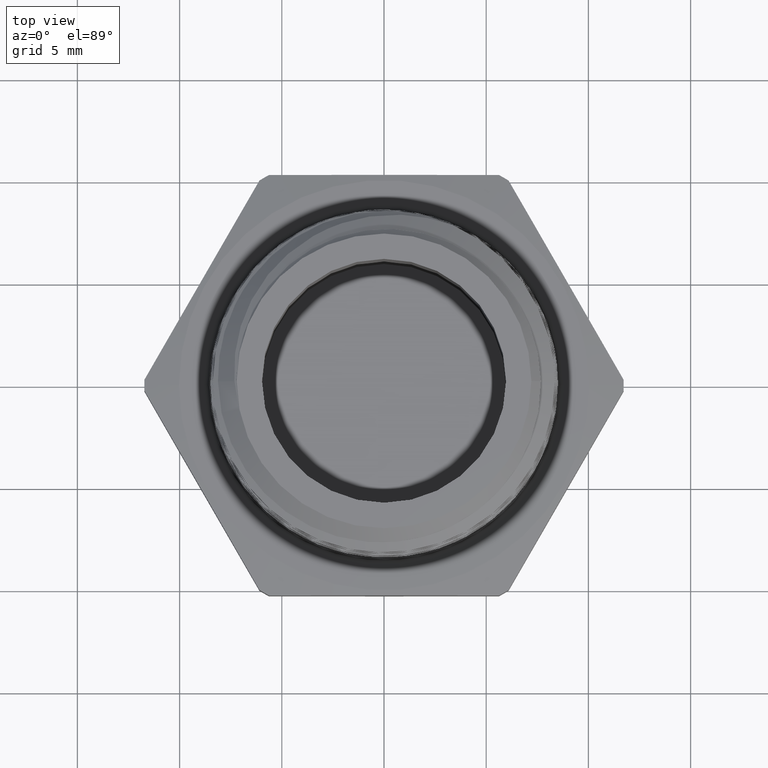
[diagram: clean part render]
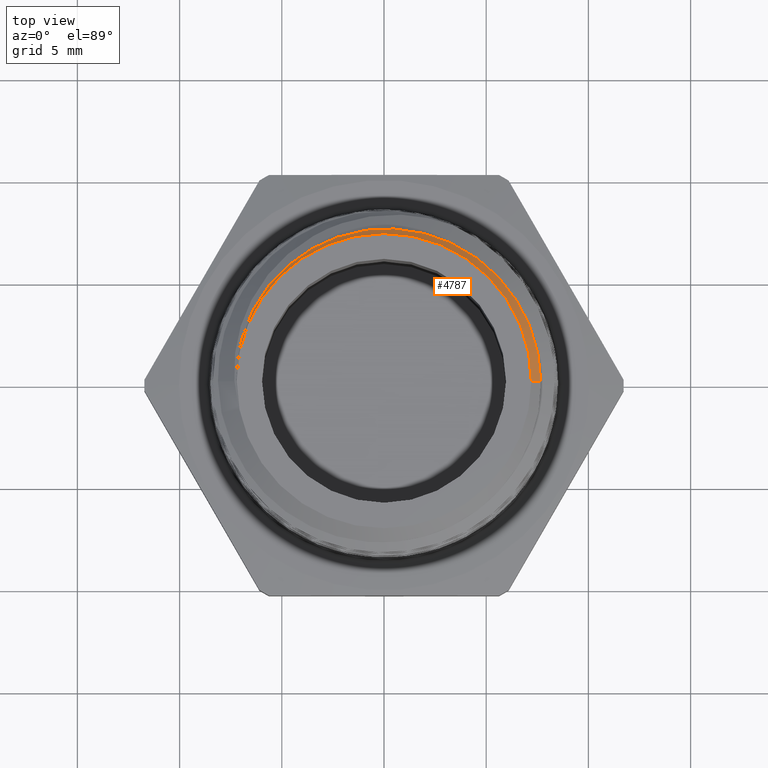
[diagram: same view with one face highlighted and labeled with its STEP entity id]
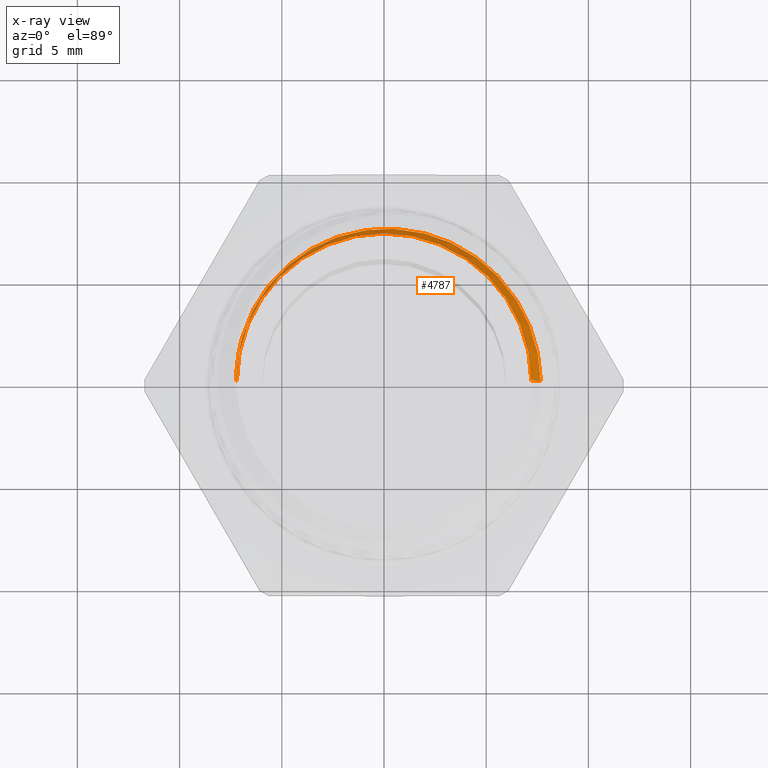
[diagram: x-ray of the same camera — body ghosted, the highlighted face saturated]
A machine part, top view. The second image highlights one B-rep face of the part: STEP entity #4787.
The next image is the same camera in x-ray: the body ghosted, the highlighted face saturated — about 0% of this face is hidden behind the body in this view.
In plain terms, the highlighted conical surface has half-angle 45 deg.
Its self-contained STEP definition (entity closure, byte-faithful):
#159 = CARTESIAN_POINT ( 'NONE',  ( 0.3019762805559717500, 6.829619984160656800E-017, 0.5718237194440283200 ) ) ;
#167 = CARTESIAN_POINT ( 'NONE',  ( 0.3016246545009665900, 0.01866432858415101700, 0.5721753454990339300 ) ) ;
#174 = CARTESIAN_POINT ( 'NONE',  ( 0.2995524493930943900, 0.03720971355466829600, 0.5725322532285911400 ) ) ;
#175 = CARTESIAN_POINT ( 'NONE',  ( 0.2938097487577615600, 0.06484585099368535300, 0.5730664659747454200 ) ) ;
#176 = CARTESIAN_POINT ( 'NONE',  ( 0.2914451151861903200, 0.07403437655760745900, 0.5732448327231518500 ) ) ;
#177 = CARTESIAN_POINT ( 'NONE',  ( 0.2859244913662024600, 0.09196169509389516500, 0.5735970142949723400 ) ) ;
#178 = CARTESIAN_POINT ( 'NONE',  ( 0.2827599453407212400, 0.1007503773745713100, 0.5737717953533435500 ) ) ;
#179 = CARTESIAN_POINT ( 'NONE',  ( 0.2720676409870115300, 0.1265974026956278300, 0.5743002553345378800 ) ) ;
#180 = CARTESIAN_POINT ( 'NONE',  ( 0.2633445950678018900, 0.1431485920093398800, 0.5746606837618636300 ) ) ;
#181 = CARTESIAN_POINT ( 'NONE',  ( 0.2426110789159576500, 0.1747856248174579600, 0.5753832014960738000 ) ) ;
#182 = CARTESIAN_POINT ( 'NONE',  ( 0.2309252436680504500, 0.1893801837203914200, 0.5757335548554565200 ) ) ;
#183 = CARTESIAN_POINT ( 'NONE',  ( 0.2114837827719622500, 0.2094966833434898400, 0.5762645876530699800 ) ) ;
#184 = CARTESIAN_POINT ( 'NONE',  ( 0.2046815088807193400, 0.2159034767439534100, 0.5764436732000538500 ) ) ;
#185 = CARTESIAN_POINT ( 'NONE',  ( 0.1904209863188565700, 0.2281081407780184400, 0.5768060107342372100 ) ) ;
#186 = CARTESIAN_POINT ( 'NONE',  ( 0.1829209315992318400, 0.2339329406838614500, 0.5769896782598579200 ) ) ;
#187 = CARTESIAN_POINT ( 'NONE',  ( 0.1598514698738000600, 0.2501496914291762000, 0.5775330982165675100 ) ) ;
#188 = CARTESIAN_POINT ( 'NONE',  ( 0.1436583545816885700, 0.2593740004187923800, 0.5778857613467708300 ) ) ;
#189 = CARTESIAN_POINT ( 'NONE',  ( 0.1181707344185573000, 0.2708728008839207900, 0.5784196398580974100 ) ) ;
#190 = CARTESIAN_POINT ( 'NONE',  ( 0.1094734325274511500, 0.2743126259101911200, 0.5785994304101622600 ) ) ;
#191 = CARTESIAN_POINT ( 'NONE',  ( 0.09166361943354361900, 0.2803818626463481800, 0.5789649017641033100 ) ) ;
#192 = CARTESIAN_POINT ( 'NONE',  ( 0.08254157600516873200, 0.2830079948262467800, 0.5791499577161327600 ) ) ;
#193 = CARTESIAN_POINT ( 'NONE',  ( 0.05515292128607955000, 0.2894938437379240300, 0.5796970038572786300 ) ) ;
#194 = CARTESIAN_POINT ( 'NONE',  ( 0.03666756710918358400, 0.2920498103849988900, 0.5800535262415152900 ) ) ;
#195 = CARTESIAN_POINT ( 'NONE',  ( -0.0007555320889867314500, 0.2936231854665371000, 0.5807734918233880000 ) ) ;
#196 = CARTESIAN_POINT ( 'NONE',  ( -0.01979277836675165700, 0.2925810505154750600, 0.5811461295700280900 ) ) ;
#197 = CARTESIAN_POINT ( 'NONE',  ( -0.05674561338791440200, 0.2869619989961613200, 0.5818785787440874400 ) ) ;
#198 = CARTESIAN_POINT ( 'NONE',  ( -0.07485554340238528800, 0.2824165526643784800, 0.5822385812614348000 ) ) ;
#199 = CARTESIAN_POINT ( 'NONE',  ( -0.1014545515510518500, 0.2729195347266136200, 0.5827853984920980900 ) ) ;
#200 = CARTESIAN_POINT ( 'NONE',  ( -0.1102264902249227300, 0.2692960133404783100, 0.5829696534559240000 ) ) ;
#201 = CARTESIAN_POINT ( 'NONE',  ( -0.1271944787213708000, 0.2612991715356250400, 0.5833387100060102300 ) ) ;
#202 = CARTESIAN_POINT ( 'NONE',  ( -0.1354411713563199400, 0.2569105347357829600, 0.5835236177237156400 ) ) ;
#203 = CARTESIAN_POINT ( 'NONE',  ( -0.1594828504993468500, 0.2425960668627626100, 0.5840763236048570600 ) ) ;
#204 = CARTESIAN_POINT ( 'NONE',  ( -0.1746498960281071000, 0.2314772812338273500, 0.5844420940364057900 ) ) ;
#205 = CARTESIAN_POINT ( 'NONE',  ( -0.2027618464916569600, 0.2062673331070844200, 0.5851786928630899900 ) ) ;
#206 = CARTESIAN_POINT ( 'NONE',  ( -0.2153759166934916500, 0.1924855473686133100, 0.5855481521503966800 ) ) ;
#207 = CARTESIAN_POINT ( 'NONE',  ( -0.2322051172240269000, 0.1701056007791931200, 0.5861056379257445500 ) ) ;
#208 = CARTESIAN_POINT ( 'NONE',  ( -0.2374642658493035200, 0.1623594762920104200, 0.5862912718190284000 ) ) ;
#209 = CARTESIAN_POINT ( 'NONE',  ( -0.2472622113716335700, 0.1462793099827098500, 0.5866630476854579600 ) ) ;
#210 = CARTESIAN_POINT ( 'NONE',  ( -0.2517949912318505600, 0.1379418624759051500, 0.5868491834632261200 ) ) ;
#211 = CARTESIAN_POINT ( 'NONE',  ( -0.2640027095339579900, 0.1125959991860335700, 0.5874022451425623400 ) ) ;
#212 = CARTESIAN_POINT ( 'NONE',  ( -0.2704108896435547000, 0.09507749814058752400, 0.5877737663485889100 ) ) ;
#213 = CARTESIAN_POINT ( 'NONE',  ( -0.2797761807044942800, 0.05880146450659243200, 0.5885254831499429100 ) ) ;
#214 = CARTESIAN_POINT ( 'NONE',  ( -0.2827123185459999900, 0.03998498879244327700, 0.5889018004459245500 ) ) ;
#215 = CARTESIAN_POINT ( 'NONE',  ( -0.2837406980274022100, 0.02108648691393690700, 0.5892768486617495600 ) ) ;
#228 = CARTESIAN_POINT ( 'NONE',  ( 0.3317566930126648600, 4.062847721936711200E-017, 0.5420433069873357200 ) ) ;
#229 = DIRECTION ( 'NONE',  ( 0.7071067811865512400, 8.659560562354978500E-017, -0.7071067811865438000 ) ) ;
#237 = CARTESIAN_POINT ( 'NONE',  ( 0.0000000000000000000, 0.0000000000000000000, 0.5899999999999999700 ) ) ;
#238 = DIRECTION ( 'NONE',  ( -0.0000000000000000000, -0.0000000000000000000, -1.000000000000000000 ) ) ;
#239 = DIRECTION ( 'NONE',  ( -1.000000000000000000, 0.0000000000000000000, 0.0000000000000000000 ) ) ;
#553 = CARTESIAN_POINT ( 'NONE',  ( 0.2838000000000001100, 3.697608685098228000E-017, 0.5899999999999999700 ) ) ;
#557 = CARTESIAN_POINT ( 'NONE',  ( -0.2838000000000001100, 0.0000000000000000000, 0.5899999999999999700 ) ) ;
#562 = CARTESIAN_POINT ( 'NONE',  ( 0.3019762805559717500, 6.829619984160656800E-017, 0.5718237194440283200 ) ) ;
#564 = CARTESIAN_POINT ( 'NONE',  ( -0.2837406980274022100, 0.02108648691393690700, 0.5892768486617495600 ) ) ;
#566 = CARTESIAN_POINT ( 'NONE',  ( -0.2845128895515027200, -3.414809992080329000E-017, 0.5892871104484975800 ) ) ;
#574 = ORIENTED_EDGE ( 'NONE', *, *, #2854, .T. ) ;
#576 = ORIENTED_EDGE ( 'NONE', *, *, #2852, .T. ) ;
#578 = ORIENTED_EDGE ( 'NONE', *, *, #2848, .T. ) ;
#580 = ORIENTED_EDGE ( 'NONE', *, *, #2840, .T. ) ;
#582 = ORIENTED_EDGE ( 'NONE', *, *, #2839, .F. ) ;
#1007 = DIRECTION ( 'NONE',  ( -1.000000000000000000, 0.0000000000000000000, 0.0000000000000000000 ) ) ;
#1008 = CARTESIAN_POINT ( 'NONE',  ( 0.0000000000000000000, 0.0000000000000000000, 0.5420433069873357200 ) ) ;
#1009 = DIRECTION ( 'NONE',  ( -0.0000000000000000000, -0.0000000000000000000, -1.000000000000000000 ) ) ;
#1954 = EDGE_LOOP ( 'NONE', ( #574, #576, #578, #580, #582 ) ) ;
#2005 = LINE ( 'NONE', #4173, #2006 ) ;
#2006 = VECTOR ( 'NONE', #4176, 39.37007874015748100 ) ;
#2014 = LINE ( 'NONE', #228, #2018 ) ;
#2017 = CIRCLE ( 'NONE', #4276, 0.2838000000000001100 ) ;
#2018 = VECTOR ( 'NONE', #229, 39.37007874015748100 ) ;
#2839 = EDGE_CURVE ( 'NONE', #4650, #4656, #2005, .T. ) ;
#2840 = EDGE_CURVE ( 'NONE', #4655, #4656, #2916, .T. ) ;
#2848 = EDGE_CURVE ( 'NONE', #4654, #4655, #2918, .T. ) ;
#2852 = EDGE_CURVE ( 'NONE', #4651, #4654, #2014, .T. ) ;
#2854 = EDGE_CURVE ( 'NONE', #4650, #4651, #2017, .T. ) ;
#2916 = B_SPLINE_CURVE_WITH_KNOTS ( 'NONE', 3,
 ( #4174, #4091, #4181, #4183 ),
 .UNSPECIFIED., .F., .F.,
 ( 4, 4 ),
 ( 1.012031732640562500E-017, 0.0005361896884913190400 ),
 .UNSPECIFIED. ) ;
#2918 = B_SPLINE_CURVE_WITH_KNOTS ( 'NONE', 3,
 ( #159, #167, #174, #175, #176, #177, #178, #179, #180, #181, #182, #183, #184, #185, #186, #187, #188, #189, #190, #191, #192, #193, #194, #195, #196, #197, #198, #199, #200, #201, #202, #203, #204, #205, #206, #207, #208, #209, #210, #211, #212, #213, #214, #215 ),
 .UNSPECIFIED., .F., .F.,
 ( 4, 2, 2, 2, 2, 2, 2, 2, 2, 2, 2, 2, 2, 2, 2, 2, 2, 2, 2, 2, 2, 4 ),
 ( 0.03771329367829213300, 0.03913560612912816300, 0.03984676235454617800, 0.04055791857996419300, 0.04198023103080022300, 0.04340254348163625300, 0.04411369970705426900, 0.04482485593247228400, 0.04624716838330831400, 0.04695832460872632900, 0.04766948083414433700, 0.04909179328498036700, 0.05051410573581639800, 0.05193641818665242800, 0.05264757441207043600, 0.05335873063748845100, 0.05478104308832447400, 0.05620335553916050400, 0.05691451176457852000, 0.05762566798999653500, 0.05904798044083256500, 0.06047029289166858800 ),
 .UNSPECIFIED. ) ;
#2994 = FACE_OUTER_BOUND ( 'NONE', #1954, .T. ) ;
#3005 = CONICAL_SURFACE ( 'NONE', #4331, 0.3317566930126648600, 0.7853981633974536100 ) ;
#4091 = CARTESIAN_POINT ( 'NONE',  ( -0.2842599750343963200, 0.01406887482507113000, 0.5892790866695947200 ) ) ;
#4173 = CARTESIAN_POINT ( 'NONE',  ( -0.3317566930126648600, 0.0000000000000000000, 0.5420433069873357200 ) ) ;
#4174 = CARTESIAN_POINT ( 'NONE',  ( -0.2837406980274022100, 0.02108648691393690700, 0.5892768486617495600 ) ) ;
#4176 = DIRECTION ( 'NONE',  ( -0.7071067811865512400, 0.0000000000000000000, -0.7071067811865438000 ) ) ;
#4181 = CARTESIAN_POINT ( 'NONE',  ( -0.2845185016635382600, 0.007036486382954669500, 0.5892814983364617100 ) ) ;
#4183 = CARTESIAN_POINT ( 'NONE',  ( -0.2845128895515027200, -3.414809992080329000E-017, 0.5892871104484975800 ) ) ;
#4276 = AXIS2_PLACEMENT_3D ( 'NONE', #237, #238, #239 ) ;
#4331 = AXIS2_PLACEMENT_3D ( 'NONE', #1008, #1009, #1007 ) ;
#4650 = VERTEX_POINT ( 'NONE', #557 ) ;
#4651 = VERTEX_POINT ( 'NONE', #553 ) ;
#4654 = VERTEX_POINT ( 'NONE', #562 ) ;
#4655 = VERTEX_POINT ( 'NONE', #564 ) ;
#4656 = VERTEX_POINT ( 'NONE', #566 ) ;
#4787 = ADVANCED_FACE ( 'NONE', ( #2994 ), #3005, .T. ) ;